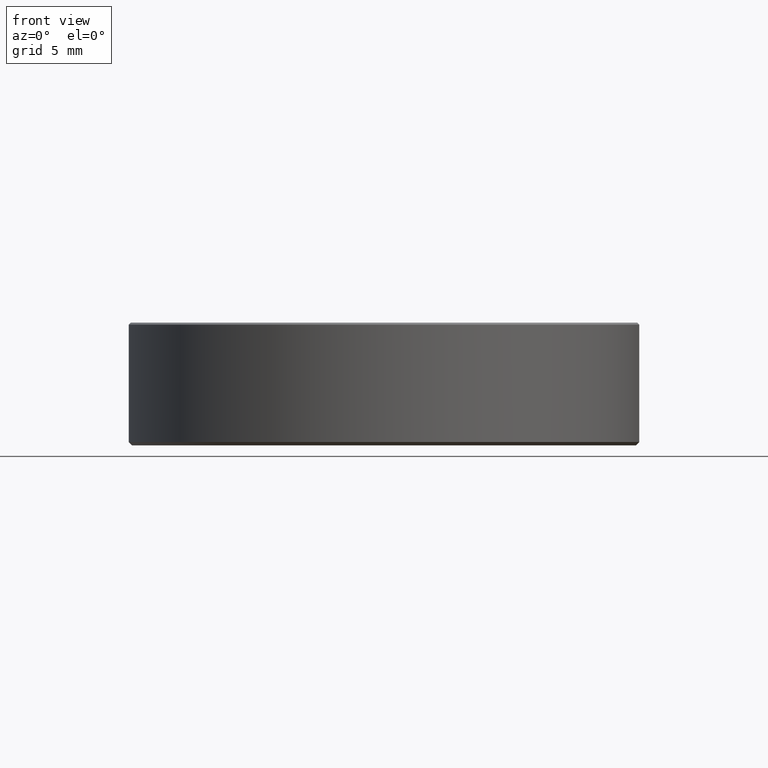
[diagram: clean part render]
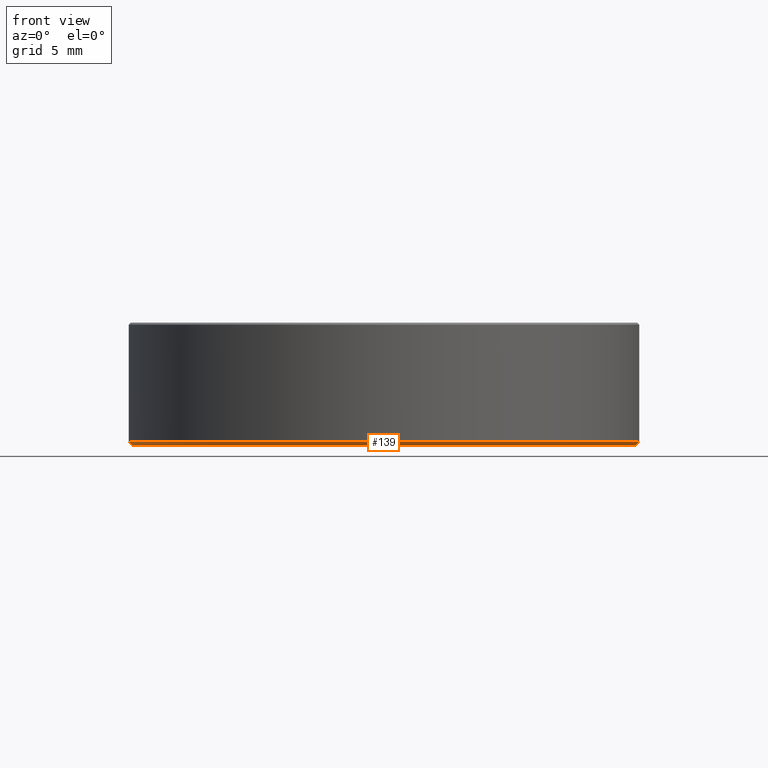
[diagram: same view with one face highlighted and labeled with its STEP entity id]
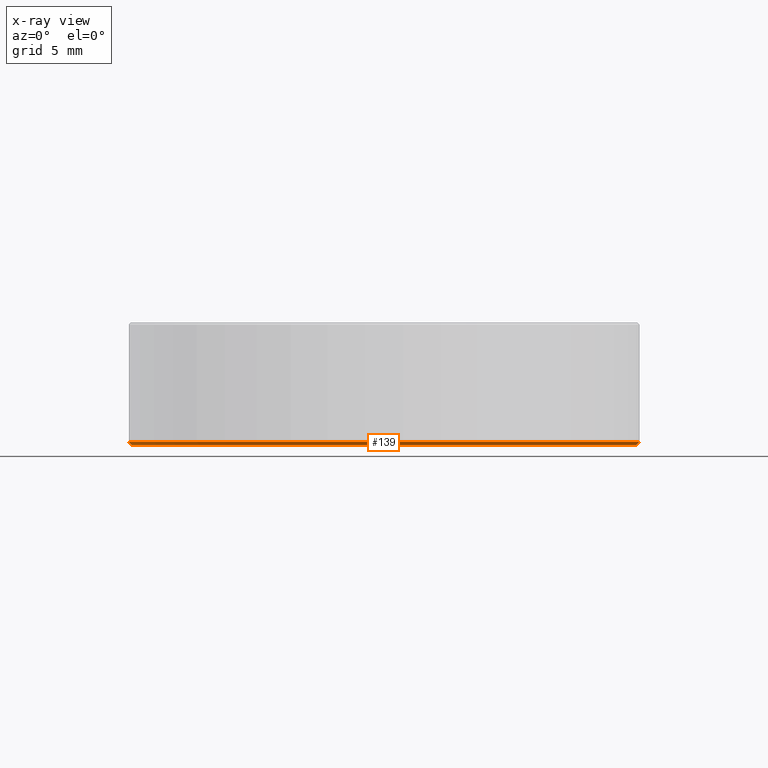
[diagram: x-ray of the same camera — body ghosted, the highlighted face saturated]
A machine part, front view. The second image highlights one B-rep face of the part: STEP entity #139.
The next image is the same camera in x-ray: the body ghosted, the highlighted face saturated — about 0% of this face is hidden behind the body in this view.
In plain terms, the highlighted conical surface has half-angle 45 deg.
Its self-contained STEP definition (entity closure, byte-faithful):
#3 = DIRECTION ( 'NONE',  ( 1.000000000000000000, 0.000000000000000000, 0.000000000000000000 ) ) ;
#10 = CARTESIAN_POINT ( 'NONE',  ( 0.000000000000000000, 0.000000000000000000, 9.184850993605147944E-16 ) ) ;
#13 = AXIS2_PLACEMENT_3D ( 'NONE', #10, #178, #155 ) ;
#22 = AXIS2_PLACEMENT_3D ( 'NONE', #104, #62, #90 ) ;
#32 = EDGE_LOOP ( 'NONE', ( #249, #241, #136, #108 ) ) ;
#54 = VERTEX_POINT ( 'NONE', #182 ) ;
#56 = CARTESIAN_POINT ( 'NONE',  ( -15.00000000000000000, 1.836970198721029589E-15, 0.2000000000000013989 ) ) ;
#62 = DIRECTION ( 'NONE',  ( -0.000000000000000000, -0.000000000000000000, 1.000000000000000000 ) ) ;
#64 = CIRCLE ( 'NONE', #13, 14.79999999999999538 ) ;
#67 = AXIS2_PLACEMENT_3D ( 'NONE', #80, #225, #3 ) ;
#69 = VERTEX_POINT ( 'NONE', #215 ) ;
#71 = EDGE_CURVE ( 'NONE', #54, #220, #76, .T. ) ;
#76 = LINE ( 'NONE', #56, #135 ) ;
#80 = CARTESIAN_POINT ( 'NONE',  ( 0.000000000000000000, 0.000000000000000000, 0.2000000000000013989 ) ) ;
#89 = VECTOR ( 'NONE', #228, 1000.000000000000000 ) ;
#90 = DIRECTION ( 'NONE',  ( 1.000000000000000000, 0.000000000000000000, 0.000000000000000000 ) ) ;
#104 = CARTESIAN_POINT ( 'NONE',  ( 0.000000000000000000, 0.000000000000000000, 0.2000000000000013989 ) ) ;
#108 = ORIENTED_EDGE ( 'NONE', *, *, #151, .F. ) ;
#113 = CARTESIAN_POINT ( 'NONE',  ( -15.00000000000000000, 1.836970198721029589E-15, 0.2000000000000013989 ) ) ;
#128 = EDGE_CURVE ( 'NONE', #69, #177, #166, .T. ) ;
#135 = VECTOR ( 'NONE', #140, 1000.000000000000000 ) ;
#136 = ORIENTED_EDGE ( 'NONE', *, *, #128, .T. ) ;
#139 = ADVANCED_FACE ( 'NONE', ( #148 ), #231, .T. ) ;
#140 = DIRECTION ( 'NONE',  ( -0.7071067811865536790, 8.659560562355008046E-17, 0.7071067811865414665 ) ) ;
#148 = FACE_OUTER_BOUND ( 'NONE', #32, .T. ) ;
#151 = EDGE_CURVE ( 'NONE', #220, #177, #173, .T. ) ;
#155 = DIRECTION ( 'NONE',  ( 1.000000000000000000, 0.000000000000000000, 0.000000000000000000 ) ) ;
#166 = LINE ( 'NONE', #263, #89 ) ;
#173 = CIRCLE ( 'NONE', #22, 15.00000000000000000 ) ;
#177 = VERTEX_POINT ( 'NONE', #266 ) ;
#178 = DIRECTION ( 'NONE',  ( 0.000000000000000000, 0.000000000000000000, -1.000000000000000000 ) ) ;
#182 = CARTESIAN_POINT ( 'NONE',  ( -14.79999999999999538, 1.824723730729555837E-15, 9.184850993605147944E-16 ) ) ;
#215 = CARTESIAN_POINT ( 'NONE',  ( 14.79999999999999538, 0.000000000000000000, 9.184850993605147944E-16 ) ) ;
#220 = VERTEX_POINT ( 'NONE', #113 ) ;
#225 = DIRECTION ( 'NONE',  ( -0.000000000000000000, -0.000000000000000000, 1.000000000000000000 ) ) ;
#228 = DIRECTION ( 'NONE',  ( 0.7071067811865536790, 0.000000000000000000, 0.7071067811865414665 ) ) ;
#231 = CONICAL_SURFACE ( 'NONE', #67, 15.00000000000000000, 0.7853981633974570498 ) ;
#241 = ORIENTED_EDGE ( 'NONE', *, *, #260, .F. ) ;
#249 = ORIENTED_EDGE ( 'NONE', *, *, #71, .F. ) ;
#260 = EDGE_CURVE ( 'NONE', #69, #54, #64, .T. ) ;
#263 = CARTESIAN_POINT ( 'NONE',  ( 15.00000000000000000, 0.000000000000000000, 0.2000000000000013989 ) ) ;
#266 = CARTESIAN_POINT ( 'NONE',  ( 15.00000000000000000, 0.000000000000000000, 0.2000000000000013989 ) ) ;